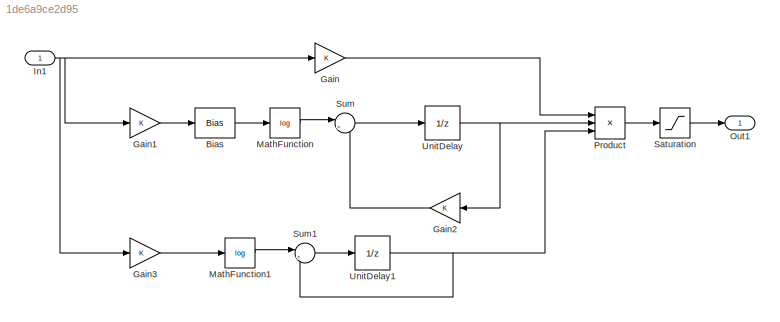
MODEL slx_1de6a9ce2d95
KIND model
BLOCK [Bias] Bias
  Bias = 128
  SaturateOnIntegerOverflow = off
BLOCK [Gain] Gain
  OutDataTypeStr = Inherit: Inherit via internal rule
  ParamDataTypeStr = Inherit: Inherit via internal rule
  SaturateOnIntegerOverflow = off
BLOCK [Gain] Gain1
  OutDataTypeStr = Inherit: Inherit via internal rule
  ParamDataTypeStr = Inherit: Inherit via internal rule
  SaturateOnIntegerOverflow = off
BLOCK [Gain] Gain2
  OutDataTypeStr = Inherit: Inherit via internal rule
  ParamDataTypeStr = Inherit: Inherit via internal rule
  SaturateOnIntegerOverflow = off
BLOCK [Gain] Gain3
  OutDataTypeStr = Inherit: Inherit via internal rule
  ParamDataTypeStr = Inherit: Inherit via internal rule
  SaturateOnIntegerOverflow = off
BLOCK [Inport] In1
  IconDisplay = Port number
BLOCK [Math] MathFunction
  Operator = log
  Ports = [1, 1]
BLOCK [Math] MathFunction1
  Operator = log
  Ports = [1, 1]
BLOCK [Outport] Out1
  IconDisplay = Port number
BLOCK [Product] Product
  InputSameDT = off
  Inputs = 3
  OutDataTypeStr = Inherit: Inherit via internal rule
  Ports = [3, 1]
  RndMeth = Floor
  SaturateOnIntegerOverflow = off
BLOCK [Saturate] Saturation
  InputPortMap = u0
  Ports = [1, 1]
BLOCK [Sum] Sum
  IconShape = round
  InputSameDT = off
  Inputs = |++
  OutDataTypeStr = Inherit: Inherit via internal rule
  Ports = [2, 1]
  SaturateOnIntegerOverflow = off
BLOCK [Sum] Sum1
  IconShape = round
  InputSameDT = off
  Inputs = |++
  OutDataTypeStr = Inherit: Inherit via internal rule
  Ports = [2, 1]
  SaturateOnIntegerOverflow = off
BLOCK [UnitDelay] UnitDelay
  InputProcessing = Elements as channels (sample based)
  SampleTime = -1
BLOCK [UnitDelay] UnitDelay1
  InputProcessing = Elements as channels (sample based)
  SampleTime = -1
LINE Bias:1 -> MathFunction:1
LINE Gain1:1 -> Bias:1
LINE Gain2:1 -> Sum:2
LINE Gain3:1 -> MathFunction1:1
LINE Gain:1 -> Product:1
NET In1:1 -> Gain1:1, Gain3:1, Gain:1
LINE MathFunction1:1 -> Sum1:1
LINE MathFunction:1 -> Sum:1
LINE Product:1 -> Saturation:1
LINE Saturation:1 -> Out1:1
LINE Sum1:1 -> UnitDelay1:1
LINE Sum:1 -> UnitDelay:1
NET UnitDelay1:1 -> Product:3, Sum1:2
NET UnitDelay:1 -> Gain2:1, Product:2
note: NET lines group one-source signal fan-out (src -> all destinations, sorted); 1:1 wires keep LINE
